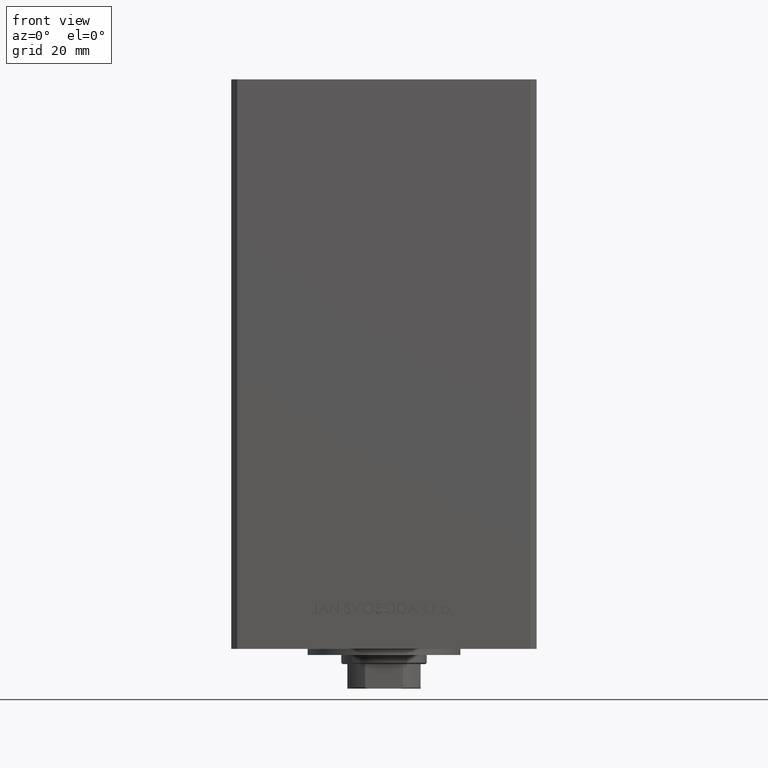
[diagram: clean part render]
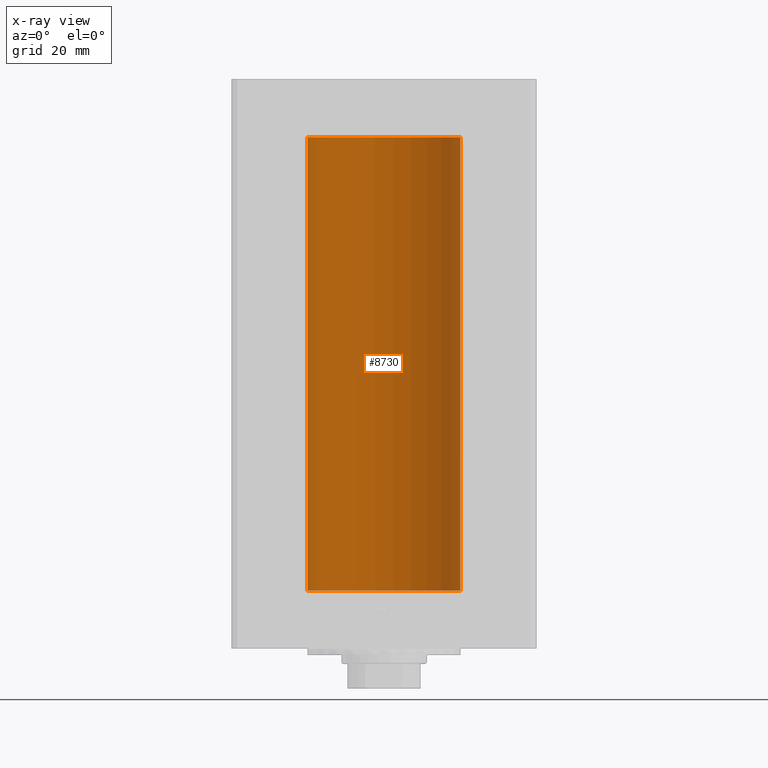
[diagram: x-ray — body ghosted, one internal face saturated and labeled with its STEP entity id]
A machine part, front view, then the same camera in x-ray: the body is ghosted and one INTERNAL B-rep face — a face not visible from any outside direction — is saturated and labeled: STEP entity #8730.
In plain terms, the highlighted cylindrical surface (partial cylindrical patch) has radius 25 mm, axis along (-0, -0, -1).
Its self-contained STEP definition (entity closure, byte-faithful):
#442 = CIRCLE ( 'NONE', #26873, 25.00000000000000000 ) ;
#2646 = DIRECTION ( 'NONE',  ( 1.000000000000000000, 0.000000000000000000, 0.000000000000000000 ) ) ;
#3205 = CARTESIAN_POINT ( 'NONE',  ( 0.000000000000000000, 0.000000000000000000, 148.5000000000000000 ) ) ;
#5831 = DIRECTION ( 'NONE',  ( -0.000000000000000000, -0.000000000000000000, -1.000000000000000000 ) ) ;
#6244 = CARTESIAN_POINT ( 'NONE',  ( 25.00000000000000000, 3.061616997868383043E-15, 148.5000000000000000 ) ) ;
#6408 = CARTESIAN_POINT ( 'NONE',  ( 0.000000000000000000, 0.000000000000000000, 148.5000000000000000 ) ) ;
#6712 = ORIENTED_EDGE ( 'NONE', *, *, #25914, .T. ) ;
#7212 = DIRECTION ( 'NONE',  ( -1.000000000000000000, 0.000000000000000000, 0.000000000000000000 ) ) ;
#8730 = ADVANCED_FACE ( 'NONE', ( #44618 ), #41586, .F. ) ;
#12132 = EDGE_LOOP ( 'NONE', ( #35468, #6712, #41234, #21912 ) ) ;
#12975 = DIRECTION ( 'NONE',  ( 1.000000000000000000, 0.000000000000000000, 0.000000000000000000 ) ) ;
#13632 = VECTOR ( 'NONE', #5831, 1000.000000000000000 ) ;
#14522 = LINE ( 'NONE', #45615, #30765 ) ;
#21258 = EDGE_CURVE ( 'NONE', #23087, #38935, #14522, .T. ) ;
#21912 = ORIENTED_EDGE ( 'NONE', *, *, #30756, .F. ) ;
#21950 = DIRECTION ( 'NONE',  ( -0.000000000000000000, 0.000000000000000000, 1.000000000000000000 ) ) ;
#23087 = VERTEX_POINT ( 'NONE', #26852 ) ;
#25914 = EDGE_CURVE ( 'NONE', #30187, #23087, #442, .T. ) ;
#26275 = AXIS2_PLACEMENT_3D ( 'NONE', #36059, #27760, #12975 ) ;
#26476 = AXIS2_PLACEMENT_3D ( 'NONE', #3205, #45354, #7212 ) ;
#26852 = CARTESIAN_POINT ( 'NONE',  ( -25.00000000000000000, 0.000000000000000000, 148.5000000000000000 ) ) ;
#26873 = AXIS2_PLACEMENT_3D ( 'NONE', #6408, #21950, #2646 ) ;
#27760 = DIRECTION ( 'NONE',  ( -0.000000000000000000, 0.000000000000000000, 1.000000000000000000 ) ) ;
#27973 = VERTEX_POINT ( 'NONE', #38007 ) ;
#30187 = VERTEX_POINT ( 'NONE', #6244 ) ;
#30756 = EDGE_CURVE ( 'NONE', #27973, #38935, #41506, .T. ) ;
#30765 = VECTOR ( 'NONE', #45136, 1000.000000000000000 ) ;
#31474 = LINE ( 'NONE', #36674, #13632 ) ;
#35468 = ORIENTED_EDGE ( 'NONE', *, *, #49462, .F. ) ;
#36059 = CARTESIAN_POINT ( 'NONE',  ( 0.000000000000000000, 0.000000000000000000, 0.000000000000000000 ) ) ;
#36674 = CARTESIAN_POINT ( 'NONE',  ( 25.00000000000000000, 3.061616997868383043E-15, 148.5000000000000000 ) ) ;
#38007 = CARTESIAN_POINT ( 'NONE',  ( 25.00000000000000000, 3.061616997868383043E-15, 0.000000000000000000 ) ) ;
#38935 = VERTEX_POINT ( 'NONE', #42086 ) ;
#41234 = ORIENTED_EDGE ( 'NONE', *, *, #21258, .T. ) ;
#41506 = CIRCLE ( 'NONE', #26275, 25.00000000000000000 ) ;
#41586 = CYLINDRICAL_SURFACE ( 'NONE', #26476, 25.00000000000000000 ) ;
#42086 = CARTESIAN_POINT ( 'NONE',  ( -25.00000000000000000, 0.000000000000000000, 0.000000000000000000 ) ) ;
#44618 = FACE_OUTER_BOUND ( 'NONE', #12132, .T. ) ;
#45136 = DIRECTION ( 'NONE',  ( -0.000000000000000000, -0.000000000000000000, -1.000000000000000000 ) ) ;
#45354 = DIRECTION ( 'NONE',  ( -0.000000000000000000, -0.000000000000000000, -1.000000000000000000 ) ) ;
#45615 = CARTESIAN_POINT ( 'NONE',  ( -25.00000000000000000, 0.000000000000000000, 148.5000000000000000 ) ) ;
#49462 = EDGE_CURVE ( 'NONE', #30187, #27973, #31474, .T. ) ;